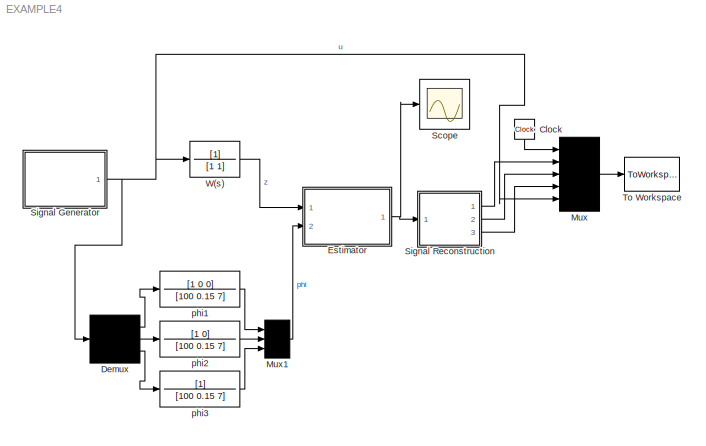
MODEL EXAMPLE4
KIND model
BLOCK [Clock] Clock
  SID = 1
BLOCK [Demux] Demux
  Outputs = 3
  Ports = [1, 3]
  SID = 67
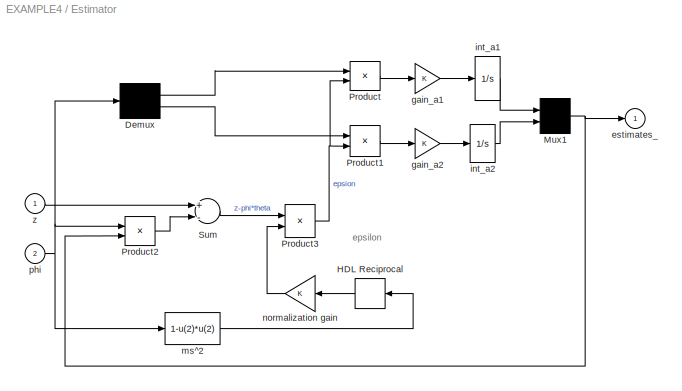
BLOCK [SubSystem] Estimator
  Ports = [2, 1]
  RequestExecContextInheritance = off
  SID = 2
  ShowPortLabels = none
  Variant = off
BLOCK [Demux] Estimator/Demux
  Outputs = 2
  Ports = [1, 2]
  SID = 5
BLOCK [Reciprocal] Estimator/HDL Reciprocal
  SID = 63
BLOCK [Mux] Estimator/Mux1
  Inputs = 2
  Ports = [2, 1]
  SID = 7
BLOCK [Product] Estimator/Product
  Ports = [2, 1]
  SID = 9
BLOCK [Product] Estimator/Product1
  Ports = [2, 1]
  SID = 10
BLOCK [Product] Estimator/Product2
  Ports = [2, 1]
  SID = 64
BLOCK [Product] Estimator/Product3
  Ports = [2, 1]
  SID = 65
BLOCK [Sum] Estimator/Sum
  Inputs = +-
  Ports = [2, 1]
  SID = 11
BLOCK [Outport] Estimator/estimates_
  IconDisplay = Port number
  SID = 22
BLOCK [Gain] Estimator/gain_a1
  SID = 14
BLOCK [Gain] Estimator/gain_a2
  SID = 15
BLOCK [Integrator] Estimator/int_a1
  Ports = [1, 1]
  SID = 16
BLOCK [Integrator] Estimator/int_a2
  Ports = [1, 1]
  SID = 17
BLOCK [Fcn] Estimator/ms^2
  Expr = 1-u(2)*u(2)
  SID = 19
BLOCK [Gain] Estimator/normalization gain
  SID = 18
BLOCK [Inport] Estimator/phi
  IconDisplay = Port number
  Port = 2
  SID = 4
BLOCK [Inport] Estimator/z
  IconDisplay = Port number
  SID = 3
BLOCK [Mux] Mux
  Inputs = 5
  Ports = [5, 1]
  SID = 23
BLOCK [Mux] Mux1
  Inputs = 3
  Ports = [3, 1]
  SID = 71
BLOCK [Scope] Scope
  Ports = [1]
  SID = 28
  ScopeSpecificationString = C++SS(StrPVP('Location','[784, 520, 1106, 900]'),StrPVP('Open','off'),MxPVP('AxesTitles',24,'struct(''axes1'',''%<SignalLabel>'')'),MxPVP('ScopeGraphics',28,'struct(''FigureColor'',''[0.5 0.5 0.5]'',''AxesColor'',''[0 0 0]'',''AxesTickColor'',''[1 1 1]'',''LineColors'',''[1 1 0;1 0 1;0 1 1;1 0 0;0 1 0;0 0 1]'',''LineStyles'',''-|-|-|-|-|-'',''LineWidths'',''[0.5 0.5 0.5 0.5 0.5 0.5]'',''MarkerStyl...<+252ch>
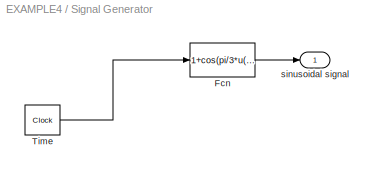
BLOCK [SubSystem] Signal Generator
  Ports = [0, 1]
  RequestExecContextInheritance = off
  SID = 29
  ShowPortLabels = none
  Variant = off
BLOCK [Fcn] Signal Generator/Fcn
  Expr = 1+cos(pi/3*u(1))
  SID = 30
BLOCK [Clock] Signal Generator/Time
  SID = 34
BLOCK [Outport] Signal Generator/sinusoidal signal
  IconDisplay = Port number
  SID = 35
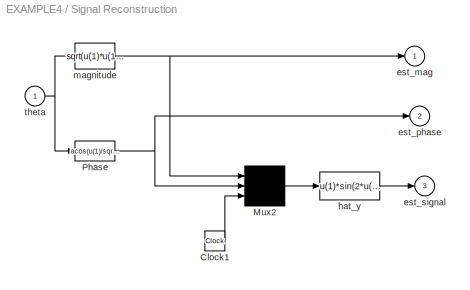
BLOCK [SubSystem] Signal Reconstruction
  Ports = [1, 3]
  RequestExecContextInheritance = off
  SID = 36
  ShowPortLabels = none
  Variant = off
BLOCK [Clock] Signal Reconstruction/Clock1
  SID = 38
BLOCK [Mux] Signal Reconstruction/Mux2
  Inputs = 3
  Ports = [3, 1]
  SID = 39
BLOCK [Fcn] Signal Reconstruction/Phase
  Expr = acos(u(1)/sqrt(u(1)*u(1)+u(2)*u(2)))
  SID = 40
BLOCK [Outport] Signal Reconstruction/est_mag
  IconDisplay = Port number
  SID = 43
BLOCK [Outport] Signal Reconstruction/est_phase
  IconDisplay = Port number
  Port = 2
  SID = 44
BLOCK [Outport] Signal Reconstruction/est_signal
  IconDisplay = Port number
  Port = 3
  SID = 45
BLOCK [Fcn] Signal Reconstruction/hat_y
  Expr = u(1)*sin(2*u(3)+u(2))
  SID = 41
BLOCK [Fcn] Signal Reconstruction/magnitude
  Expr = sqrt(u(1)*u(1)+u(2)*u(2))
  SID = 42
BLOCK [Inport] Signal Reconstruction/theta
  IconDisplay = Port number
  SID = 37
BLOCK [ToWorkspace] To Workspace
  MaxDataPoints = 5000
  Ports = [1]
  SID = 48
  VariableName = yout
BLOCK [TransferFcn] W(s)
  SID = 49
BLOCK [TransferFcn] phi1
  Denominator = [100 0.15 7]
  Numerator = [1 0 0]
  SID = 68
BLOCK [TransferFcn] phi2
  Denominator = [100 0.15 7]
  Numerator = [1 0]
  SID = 69
BLOCK [TransferFcn] phi3
  Denominator = [100 0.15 7]
  SID = 70
ANNOTATION Estimator: epsilon
LINE Clock:1 -> Mux:1
LINE Demux:1 -> phi1:1
LINE Demux:2 -> phi2:1
LINE Demux:3 -> phi3:1
LINE Estimator/Demux:1 -> Estimator/Product:1
LINE Estimator/Demux:2 -> Estimator/Product1:1
LINE Estimator/HDL Reciprocal:1 -> Estimator/normalization gain:1
NET Estimator/Mux1:1 -> Estimator/Product2:2, Estimator/estimates_:1
LINE Estimator/Product1:1 -> Estimator/gain_a2:1
LINE Estimator/Product2:1 -> Estimator/Sum:2
NET Estimator/Product3:1 -> Estimator/Product1:2, Estimator/Product:2
LINE Estimator/Product:1 -> Estimator/gain_a1:1
LINE Estimator/Sum:1 -> Estimator/Product3:1
LINE Estimator/gain_a1:1 -> Estimator/int_a1:1
LINE Estimator/gain_a2:1 -> Estimator/int_a2:1
LINE Estimator/int_a1:1 -> Estimator/Mux1:1
LINE Estimator/int_a2:1 -> Estimator/Mux1:2
LINE Estimator/ms^2:1 -> Estimator/HDL Reciprocal:1
LINE Estimator/normalization gain:1 -> Estimator/Product3:2
NET Estimator/phi:1 -> Estimator/Demux:1, Estimator/Product2:1, Estimator/ms^2:1
LINE Estimator/z:1 -> Estimator/Sum:1
NET Estimator:1 -> Scope:1, Signal Reconstruction:1
LINE Mux1:1 -> Estimator:2
LINE Mux:1 -> To Workspace:1
LINE Signal Generator/Fcn:1 -> Signal Generator/sinusoidal signal:1
LINE Signal Generator/Time:1 -> Signal Generator/Fcn:1
NET Signal Generator:1 -> Demux:1, Mux:5, W(s):1
LINE Signal Reconstruction/Clock1:1 -> Signal Reconstruction/Mux2:3
LINE Signal Reconstruction/Mux2:1 -> Signal Reconstruction/hat_y:1
NET Signal Reconstruction/Phase:1 -> Signal Reconstruction/Mux2:2, Signal Reconstruction/est_phase:1
LINE Signal Reconstruction/hat_y:1 -> Signal Reconstruction/est_signal:1
NET Signal Reconstruction/magnitude:1 -> Signal Reconstruction/Mux2:1, Signal Reconstruction/est_mag:1
NET Signal Reconstruction/theta:1 -> Signal Reconstruction/Phase:1, Signal Reconstruction/magnitude:1
LINE Signal Reconstruction:1 -> Mux:2
LINE Signal Reconstruction:2 -> Mux:3
LINE Signal Reconstruction:3 -> Mux:4
LINE W(s):1 -> Estimator:1
LINE phi1:1 -> Mux1:1
LINE phi2:1 -> Mux1:2
LINE phi3:1 -> Mux1:3
note: NET lines group one-source signal fan-out (src -> all destinations, sorted); 1:1 wires keep LINE
